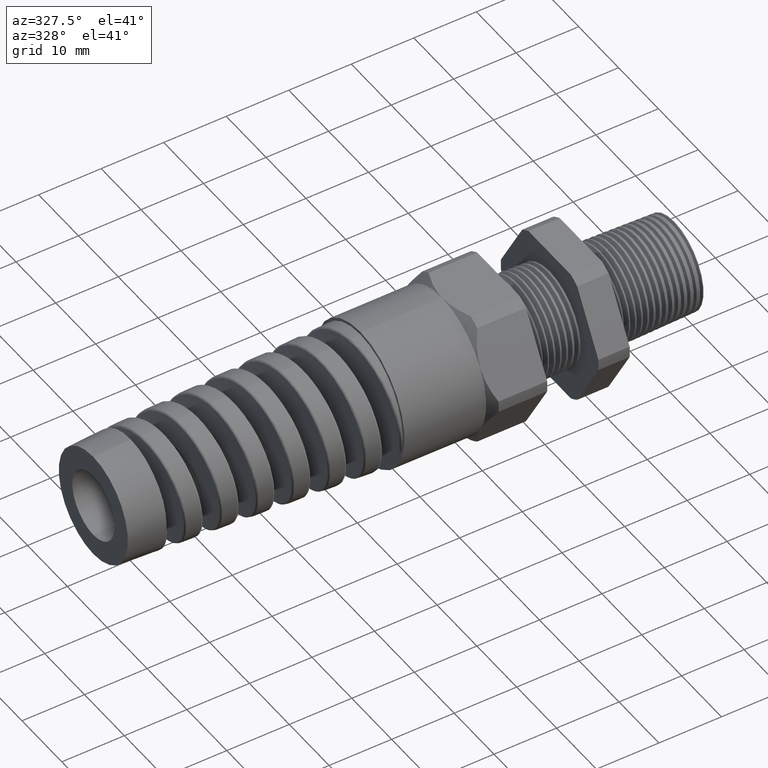
[diagram: clean part render]
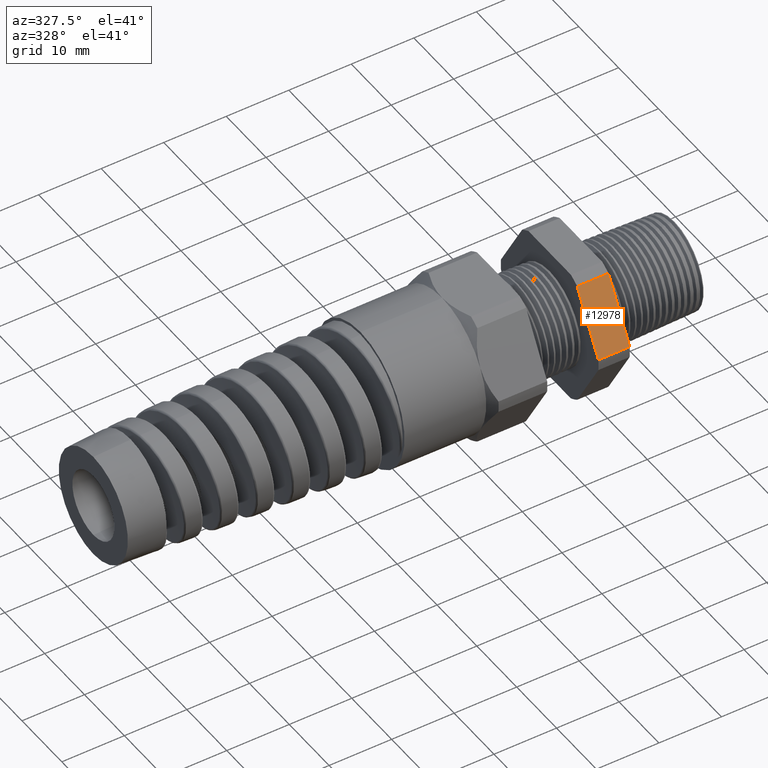
[diagram: same view with one face highlighted and labeled with its STEP entity id]
A machine part, auxiliary view. The second image highlights one B-rep face of the part: STEP entity #12978.
In plain terms, the highlighted planar face has unit normal (0, -0.866, 0.5).
Its self-contained STEP definition (entity closure, byte-faithful):
#7066 = CARTESIAN_POINT ( 'NONE',  ( -0.3100000000000000000, -0.4815054990391103900, 0.03600801154045356300 ) ) ;
#7075 = DIRECTION ( 'NONE',  ( -0.0000000000000000000, -0.4999999999999997200, -0.8660254037844388200 ) ) ;
#7076 = VECTOR ( 'NONE', #7075, 39.37007874015748100 ) ;
#7077 = CARTESIAN_POINT ( 'NONE',  ( -0.3100000000000000000, -0.1592210506462311000, 0.5942210506462305400 ) ) ;
#7078 = LINE ( 'NONE', #7077, #7076 ) ;
#7079 = CARTESIAN_POINT ( 'NONE',  ( -0.3100000000000000000, -0.2719366022533518700, 0.3989919884595458700 ) ) ;
#7865 = DIRECTION ( 'NONE',  ( 0.0000000000000000000, 0.4999999999999997200, 0.8660254037844388200 ) ) ;
#7866 = VECTOR ( 'NONE', #7865, 39.37007874015748100 ) ;
#7867 = CARTESIAN_POINT ( 'NONE',  ( -0.5068503937007874400, -0.1592210506462311000, 0.5942210506462305400 ) ) ;
#7868 = LINE ( 'NONE', #7867, #7866 ) ;
#7869 = CARTESIAN_POINT ( 'NONE',  ( -0.5068503937007874400, -0.4815054990391103900, 0.03600801154045356300 ) ) ;
#7927 = CARTESIAN_POINT ( 'NONE',  ( -0.5068503937007874400, -0.2719366022533518700, 0.3989919884595458700 ) ) ;
#7991 = DIRECTION ( 'NONE',  ( 0.0000000000000000000, -0.4999999999999997200, -0.8660254037844388200 ) ) ;
#7992 = DIRECTION ( 'NONE',  ( 0.0000000000000000000, -0.8660254037844388200, 0.4999999999999997200 ) ) ;
#7993 = CARTESIAN_POINT ( 'NONE',  ( 0.2800000000000000300, -0.4815054990391102700, 0.03600801154045393800 ) ) ;
#7994 = AXIS2_PLACEMENT_3D ( 'NONE', #7993, #7992, #7991 ) ;
#7995 = PLANE ( 'NONE',  #7994 ) ;
#7997 = FACE_OUTER_BOUND ( 'NONE', #12979, .T. ) ;
#7998 = DIRECTION ( 'NONE',  ( -1.000000000000000000, -0.0000000000000000000, -0.0000000000000000000 ) ) ;
#7999 = VECTOR ( 'NONE', #7998, 39.37007874015748100 ) ;
#8000 = CARTESIAN_POINT ( 'NONE',  ( 0.2800000000000000300, -0.2719366022533518700, 0.3989919884595458700 ) ) ;
#8001 = LINE ( 'NONE', #8000, #7999 ) ;
#8097 = DIRECTION ( 'NONE',  ( -1.000000000000000000, -0.0000000000000000000, -0.0000000000000000000 ) ) ;
#8098 = VECTOR ( 'NONE', #8097, 39.37007874015748100 ) ;
#8099 = CARTESIAN_POINT ( 'NONE',  ( 0.2800000000000000300, -0.4815054990391103900, 0.03600801154045356300 ) ) ;
#8103 = LINE ( 'NONE', #8099, #8098 ) ;
#12488 = VERTEX_POINT ( 'NONE', #7066 ) ;
#12515 = VERTEX_POINT ( 'NONE', #7079 ) ;
#12517 = EDGE_CURVE ( 'NONE', #12515, #12488, #7078, .T. ) ;
#12889 = VERTEX_POINT ( 'NONE', #7869 ) ;
#12891 = EDGE_CURVE ( 'NONE', #12889, #12892, #7868, .T. ) ;
#12892 = VERTEX_POINT ( 'NONE', #7927 ) ;
#12976 = EDGE_CURVE ( 'NONE', #12515, #12892, #8001, .T. ) ;
#12978 = ADVANCED_FACE ( 'NONE', ( #7997 ), #7995, .T. ) ;
#12979 = EDGE_LOOP ( 'NONE', ( #12980, #12981, #12982, #13037 ) ) ;
#12980 = ORIENTED_EDGE ( 'NONE', *, *, #12976, .T. ) ;
#12981 = ORIENTED_EDGE ( 'NONE', *, *, #12891, .F. ) ;
#12982 = ORIENTED_EDGE ( 'NONE', *, *, #13036, .F. ) ;
#13036 = EDGE_CURVE ( 'NONE', #12488, #12889, #8103, .T. ) ;
#13037 = ORIENTED_EDGE ( 'NONE', *, *, #12517, .F. ) ;